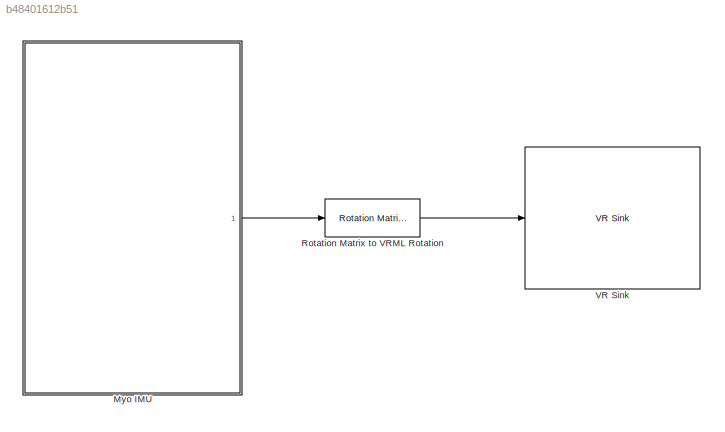
MODEL slx_b48401612b51
KIND model
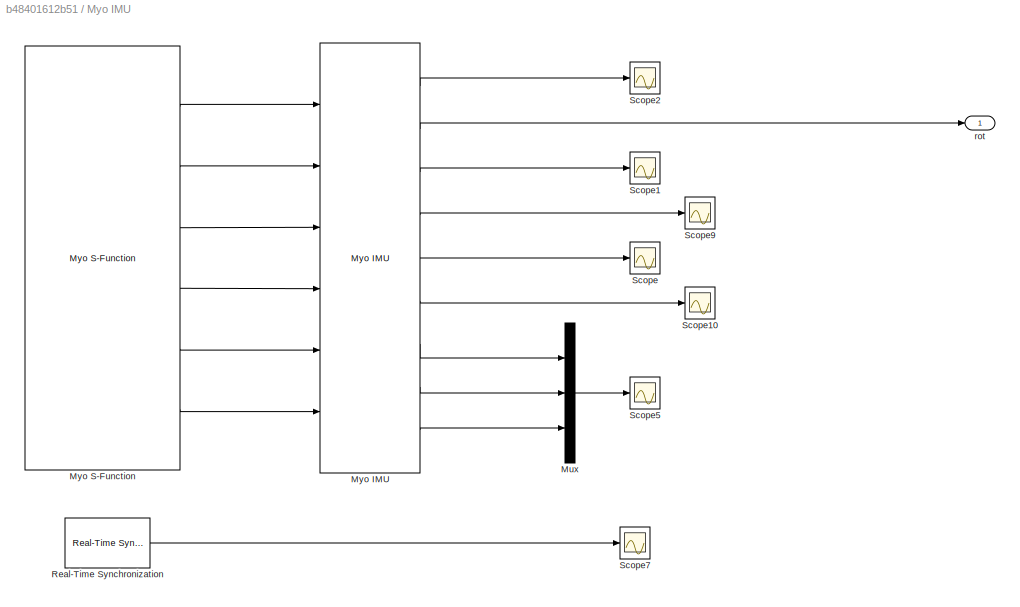
BLOCK [SubSystem] Myo IMU
  FunctionWithSeparateData = off
  MaskHideContents = off
  MinAlgLoopOccurrences = off
  Opaque = off
  Ports = [0, 1]
  PropExecContextOutsideSubsystem = off
  RTWSystemCode = Auto
  RequestExecContextInheritance = off
BLOCK [Mux] Myo IMU/Mux
  DisplayOption = bar
  Inputs = 3
  Ports = [3, 1]
BLOCK [Reference] Myo IMU/Myo IMU  REF=myo_lib/Myo IMU  (lib defined in slx_a57fffc76f72)
  Ports = [6, 9]
  SourceBlock = myo_lib/Myo IMU
  SourceType = SubSystem
BLOCK [Reference] Myo IMU/Myo S-Function  REF=myo_lib/Myo S-Function  (lib defined in slx_a57fffc76f72)
  Ports = [0, 6]
  SourceBlock = myo_lib/Myo S-Function
  countMyos = 1
  emgEnabled = 0
BLOCK [Reference] Myo IMU/Real-Time Synchronization  REF=rtwinlib/Real-Time
Synchronization
  MaxMissedTicks = 50
  Ports = [0, 1]
  SampleTime = 0.04
  ShowMissedTicks = on
  SourceBlock = rtwinlib/Real-Time\nSynchronization
  SourceType = RTWin Real-Time Synchronization
  YieldWhenWaiting = on
BLOCK [Scope] Myo IMU/Scope
  DataFormat = StructureWithTime
  Floating = off
  NumInputPorts = 1
  Ports = [1]
  SampleTime = 0
  ShowLegends = off
  ZoomMode = yonly
BLOCK [Scope] Myo IMU/Scope1
  DataFormat = StructureWithTime
  Floating = off
  NumInputPorts = 1
  Ports = [1]
  SampleTime = 0
  SaveName = ScopeData1
  ShowLegends = off
  YMax = 1750
  YMin = -750
  ZoomMode = yonly
BLOCK [Scope] Myo IMU/Scope10
  DataFormat = StructureWithTime
  Floating = off
  NumInputPorts = 1
  Ports = [1]
  SampleTime = 0
  SaveName = ScopeData10
  ShowLegends = off
  ZoomMode = yonly
BLOCK [Scope] Myo IMU/Scope2
  DataFormat = StructureWithTime
  Floating = off
  NumInputPorts = 1
  Ports = [1]
  SampleTime = 0
  SaveName = ScopeData2
  ShowLegends = off
  YMax = 0.9
  YMin = -0.4
  ZoomMode = xonly
BLOCK [Scope] Myo IMU/Scope5
  DataFormat = StructureWithTime
  Floating = off
  NumInputPorts = 1
  Ports = [1]
  SampleTime = 0
  SaveName = ScopeData5
  ShowLegends = off
  ZoomMode = yonly
BLOCK [Scope] Myo IMU/Scope7
  DataFormat = StructureWithTime
  Floating = off
  NumInputPorts = 1
  Ports = [1]
  SampleTime = 0
  SaveName = ScopeData7
  ShowLegends = off
  TimeRange = 10
  YMax = 150
  YMin = -150
  ZoomMode = yonly
BLOCK [Scope] Myo IMU/Scope9
  DataFormat = StructureWithTime
  Floating = off
  NumInputPorts = 1
  Ports = [1]
  SampleTime = 0
  SaveName = ScopeData9
  ShowLegends = off
  YMax = 1000
  YMin = -1750
  ZoomMode = yonly
BLOCK [Outport] Myo IMU/rot
  IconDisplay = Port number
BLOCK [Reference] Rotation Matrix to VRML Rotation  REF=vrlib/Utilities/Rotation Matrix
to VRML Rotation
  Ports = [1, 1]
  SourceBlock = vrlib/Utilities/Rotation Matrix\nto VRML Rotation
  SourceType = Rotation Matrix to VRML Rotation
  maxzero = 1e-12
BLOCK [Reference] VR Sink  REF=vrlib/VR Sink
  AllowVariableSize = off
  AutoView = off
  FieldsWritten = Myo.rotation.4.1.1.double
  InstantiateOnLoad = on
  Ports = [1]
  RemoteChange = off
  RemoteView = off
  SampleTime = -1
  SourceBlock = vrlib/VR Sink
  SourceType = Virtual Reality Sink
  VideoDimensions = []
  ViewEnable = on
  WorldFileName = myo_sfun_one_myo_imu_visualization.wrl
LINE Myo IMU/Mux:1 -> Myo IMU/Scope5:1
LINE Myo IMU/Myo IMU:1 -> Myo IMU/Scope2:1
LINE Myo IMU/Myo IMU:2 -> Myo IMU/rot:1
LINE Myo IMU/Myo IMU:3 -> Myo IMU/Scope1:1
LINE Myo IMU/Myo IMU:4 -> Myo IMU/Scope9:1
LINE Myo IMU/Myo IMU:5 -> Myo IMU/Scope:1
LINE Myo IMU/Myo IMU:6 -> Myo IMU/Scope10:1
LINE Myo IMU/Myo IMU:7 -> Myo IMU/Mux:1
LINE Myo IMU/Myo IMU:8 -> Myo IMU/Mux:2
LINE Myo IMU/Myo IMU:9 -> Myo IMU/Mux:3
LINE Myo IMU/Myo S-Function:1 -> Myo IMU/Myo IMU:1
LINE Myo IMU/Myo S-Function:2 -> Myo IMU/Myo IMU:2
LINE Myo IMU/Myo S-Function:3 -> Myo IMU/Myo IMU:3
LINE Myo IMU/Myo S-Function:4 -> Myo IMU/Myo IMU:4
LINE Myo IMU/Myo S-Function:5 -> Myo IMU/Myo IMU:5
LINE Myo IMU/Myo S-Function:6 -> Myo IMU/Myo IMU:6
LINE Myo IMU/Real-Time Synchronization:1 -> Myo IMU/Scope7:1
LINE Myo IMU:1 -> Rotation Matrix to VRML Rotation:1
LINE Rotation Matrix to VRML Rotation:1 -> VR Sink:1
